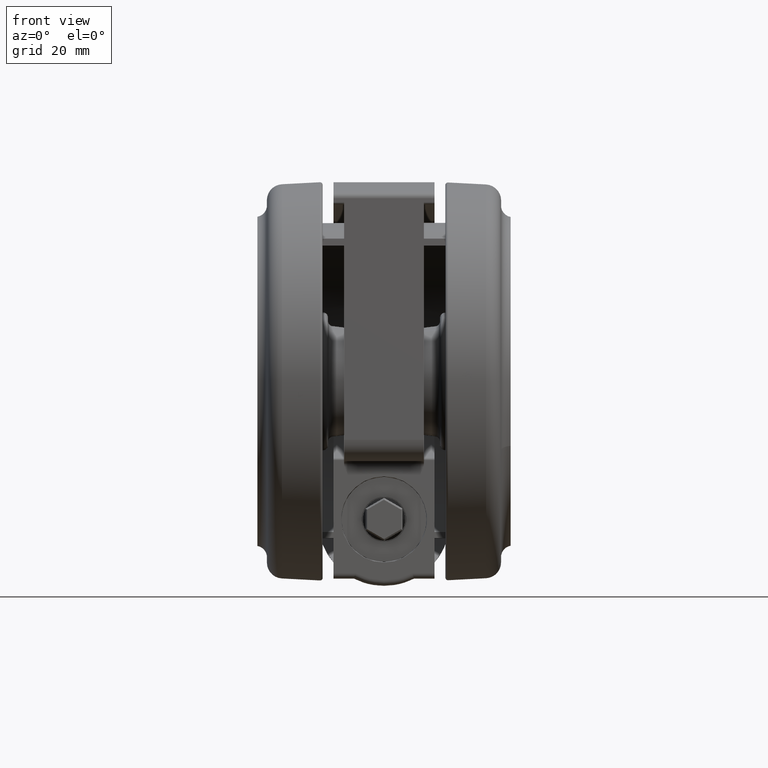
[diagram: clean part render]
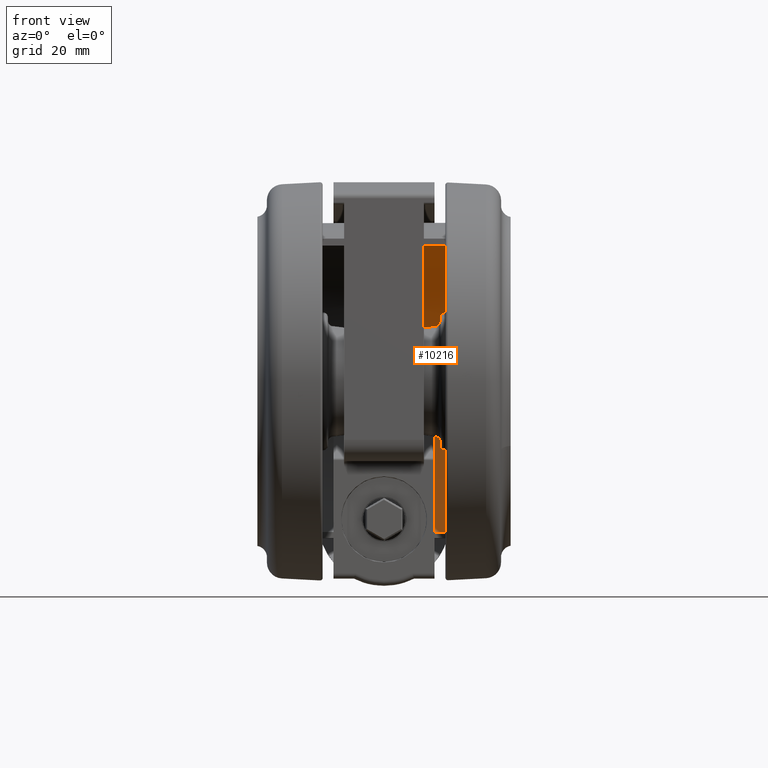
[diagram: same view with one face highlighted and labeled with its STEP entity id]
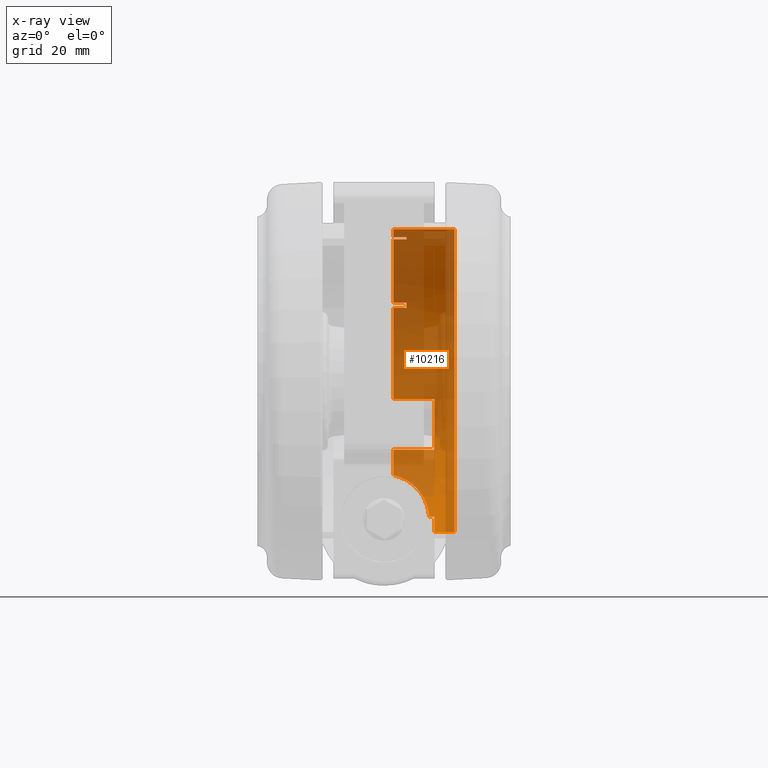
[diagram: x-ray of the same camera — body ghosted, the highlighted face saturated]
A machine part, front view. The second image highlights one B-rep face of the part: STEP entity #10216.
The next image is the same camera in x-ray: the body ghosted, the highlighted face saturated — about 80% of this face is hidden behind the body in this view.
In plain terms, the highlighted cylindrical surface (partial cylindrical patch) has radius 28.65 mm, axis along (-1, 0, 0).
Its self-contained STEP definition (entity closure, byte-faithful):
#36 = VERTEX_POINT ( 'NONE', #21709 ) ;
#113 = VERTEX_POINT ( 'NONE', #30694 ) ;
#183 = DIRECTION ( 'NONE',  ( 0.0000000000000000000, 0.0000000000000000000, -1.000000000000000000 ) ) ;
#187 = CARTESIAN_POINT ( 'NONE',  ( -2.081668171172168500E-014, -4.163336342344337000E-014, -19.59999999999989800 ) ) ;
#210 = EDGE_CURVE ( 'NONE', #56232, #12811, #10348, .T. ) ;
#605 = CIRCLE ( 'NONE', #42469, 28.64999999999999500 ) ;
#1041 = CARTESIAN_POINT ( 'NONE',  ( 18.47237538105821700, -21.89963122477810800, -22.09999999999989800 ) ) ;
#1673 = ORIENTED_EDGE ( 'NONE', *, *, #20931, .T. ) ;
#2098 = CIRCLE ( 'NONE', #22852, 28.64999999999999500 ) ;
#2159 = CIRCLE ( 'NONE', #28052, 28.64999999999999500 ) ;
#2346 = LINE ( 'NONE', #9666, #15682 ) ;
#2499 = CARTESIAN_POINT ( 'NONE',  ( -7.443500238701865600, -27.66616713960298000, -10.34999999999989800 ) ) ;
#3006 = FACE_OUTER_BOUND ( 'NONE', #46856, .T. ) ;
#3079 = CIRCLE ( 'NONE', #33637, 28.64999999999999500 ) ;
#3288 = CIRCLE ( 'NONE', #15584, 28.64999999999999500 ) ;
#3574 = CARTESIAN_POINT ( 'NONE',  ( 11.23323760836862000, 26.35596465382988300, -10.54999999999989900 ) ) ;
#3771 = VECTOR ( 'NONE', #19104, 1000.000000000000000 ) ;
#4064 = VERTEX_POINT ( 'NONE', #14465 ) ;
#4501 = DIRECTION ( 'NONE',  ( 0.0000000000000000000, 0.0000000000000000000, -1.000000000000000000 ) ) ;
#4591 = VECTOR ( 'NONE', #44282, 1000.000000000000000 ) ;
#4720 = DIRECTION ( 'NONE',  ( 0.3920850823165320000, 0.9199289582488630000, 0.0000000000000000000 ) ) ;
#4790 = VERTEX_POINT ( 'NONE', #36297 ) ;
#5040 = VERTEX_POINT ( 'NONE', #47260 ) ;
#5265 = ORIENTED_EDGE ( 'NONE', *, *, #17458, .T. ) ;
#6134 = LINE ( 'NONE', #56396, #50940 ) ;
#6379 = CARTESIAN_POINT ( 'NONE',  ( -2.081668171172168500E-014, -4.163336342344337000E-014, -19.59999999999989800 ) ) ;
#7897 = ORIENTED_EDGE ( 'NONE', *, *, #210, .T. ) ;
#8144 = CARTESIAN_POINT ( 'NONE',  ( 13.80464484434436700, -25.10486567822096400, -22.09999999999989800 ) ) ;
#8404 = ORIENTED_EDGE ( 'NONE', *, *, #20836, .T. ) ;
#8694 = VERTEX_POINT ( 'NONE', #3574 ) ;
#9076 = DIRECTION ( 'NONE',  ( 0.0000000000000000000, 0.0000000000000000000, -1.000000000000000000 ) ) ;
#9337 = ORIENTED_EDGE ( 'NONE', *, *, #24377, .T. ) ;
#9583 = ORIENTED_EDGE ( 'NONE', *, *, #51310, .F. ) ;
#9624 = LINE ( 'NONE', #17471, #32023 ) ;
#9666 = CARTESIAN_POINT ( 'NONE',  ( 11.23323760836862000, 26.35596465382988300, -10.34999999999989800 ) ) ;
#10216 = ADVANCED_FACE ( 'NONE', ( #3006 ), #25379, .F. ) ;
#10348 = B_SPLINE_CURVE_WITH_KNOTS ( 'NONE', 3,
 ( #55301, #53620, #49306, #55346, #55693, #55809, #56009, #56090, #56210, #56295, #56674, #56942, #57054, #57311, #57351, #57433, #57883, #44823, #41100, #42132 ),
 .UNSPECIFIED., .F., .F.,
 ( 4, 2, 2, 2, 2, 2, 2, 2, 2, 4 ),
 ( 0.01852732636095172000, 0.01946173926671352200, 0.02039615217247532600, 0.02226497798399892200, 0.02319939088976072400, 0.02413380379552252500, 0.02600262960704613100, 0.02787145541856973800, 0.02974028123009334800, 0.03347793285314056000 ),
 .UNSPECIFIED. ) ;
#10610 = EDGE_CURVE ( 'NONE', #22424, #49603, #35154, .T. ) ;
#10704 = VERTEX_POINT ( 'NONE', #1041 ) ;
#10909 = DIRECTION ( 'NONE',  ( 0.3920850823165320000, 0.9199289582488630000, 0.0000000000000000000 ) ) ;
#11101 = CARTESIAN_POINT ( 'NONE',  ( -2.081668171172168500E-014, -4.163336342344337000E-014, -14.34999999999990000 ) ) ;
#12629 = AXIS2_PLACEMENT_3D ( 'NONE', #11101, #42408, #15612 ) ;
#12811 = VERTEX_POINT ( 'NONE', #31116 ) ;
#13277 = VERTEX_POINT ( 'NONE', #35167 ) ;
#13973 = ORIENTED_EDGE ( 'NONE', *, *, #14413, .T. ) ;
#14080 = CARTESIAN_POINT ( 'NONE',  ( -2.081668171172168500E-014, -4.163336342344337000E-014, -22.09999999999989800 ) ) ;
#14234 = CARTESIAN_POINT ( 'NONE',  ( 28.36307073732953700, 4.044591246249662900, -22.09999999999989800 ) ) ;
#14413 = EDGE_CURVE ( 'NONE', #12811, #37983, #38607, .T. ) ;
#14465 = CARTESIAN_POINT ( 'NONE',  ( 24.84280370673677800, -14.27086556549901700, -14.34999999999990000 ) ) ;
#14630 = CARTESIAN_POINT ( 'NONE',  ( -2.081668171172168500E-014, -4.163336342344337000E-014, -10.34999999999989800 ) ) ;
#14862 = LINE ( 'NONE', #54552, #38680 ) ;
#15167 = VERTEX_POINT ( 'NONE', #57059 ) ;
#15584 = AXIS2_PLACEMENT_3D ( 'NONE', #6379, #37698, #10909 ) ;
#15612 = DIRECTION ( 'NONE',  ( 0.3920850823165320000, 0.9199289582488630000, 0.0000000000000000000 ) ) ;
#15682 = VECTOR ( 'NONE', #9076, 1000.000000000000000 ) ;
#16205 = VECTOR ( 'NONE', #18778, 1000.000000000000000 ) ;
#16509 = CARTESIAN_POINT ( 'NONE',  ( -2.081668171172168500E-014, -4.163336342344337000E-014, -22.09999999999989800 ) ) ;
#17458 = EDGE_CURVE ( 'NONE', #5040, #4064, #6134, .T. ) ;
#17471 = CARTESIAN_POINT ( 'NONE',  ( 19.12755958878579000, 21.32976709149552300, -19.59999999999989800 ) ) ;
#18445 = AXIS2_PLACEMENT_3D ( 'NONE', #27018, #183, #31527 ) ;
#18542 = DIRECTION ( 'NONE',  ( 0.3920850823165320000, 0.9199289582488630000, 0.0000000000000000000 ) ) ;
#18778 = DIRECTION ( 'NONE',  ( 0.0000000000000000000, 0.0000000000000000000, 1.000000000000000000 ) ) ;
#19004 = DIRECTION ( 'NONE',  ( -0.0000000000000000000, -0.0000000000000000000, 1.000000000000000000 ) ) ;
#19104 = DIRECTION ( 'NONE',  ( 0.0000000000000000000, 0.0000000000000000000, -1.000000000000000000 ) ) ;
#20581 = DIRECTION ( 'NONE',  ( -0.0000000000000000000, -0.0000000000000000000, 1.000000000000000000 ) ) ;
#20836 = EDGE_CURVE ( 'NONE', #10704, #56232, #49645, .T. ) ;
#20893 = DIRECTION ( 'NONE',  ( 0.0000000000000000000, 0.0000000000000000000, -1.000000000000000000 ) ) ;
#20931 = EDGE_CURVE ( 'NONE', #4790, #8694, #605, .T. ) ;
#21008 = DIRECTION ( 'NONE',  ( 0.3920850823165320000, 0.9199289582488630000, 0.0000000000000000000 ) ) ;
#21709 = CARTESIAN_POINT ( 'NONE',  ( 19.12755958878579000, 21.32976709149552300, -19.59999999999989800 ) ) ;
#21884 = VECTOR ( 'NONE', #40615, 1000.000000000000000 ) ;
#22376 = EDGE_CURVE ( 'NONE', #45972, #38021, #3288, .T. ) ;
#22424 = VERTEX_POINT ( 'NONE', #33952 ) ;
#22852 = AXIS2_PLACEMENT_3D ( 'NONE', #187, #31531, #4720 ) ;
#24377 = EDGE_CURVE ( 'NONE', #51769, #5040, #3079, .T. ) ;
#25379 = CYLINDRICAL_SURFACE ( 'NONE', #58164, 28.64999999999999500 ) ;
#25531 = EDGE_CURVE ( 'NONE', #15167, #45860, #2159, .T. ) ;
#26025 = EDGE_CURVE ( 'NONE', #36, #22424, #2098, .T. ) ;
#26065 = CIRCLE ( 'NONE', #33533, 28.64999999999999500 ) ;
#27018 = CARTESIAN_POINT ( 'NONE',  ( -2.081668171172168500E-014, -4.163336342344337000E-014, -22.09999999999989800 ) ) ;
#27082 = CARTESIAN_POINT ( 'NONE',  ( 20.00397893798255600, 20.51007866022817400, -19.59999999999989800 ) ) ;
#28052 = AXIS2_PLACEMENT_3D ( 'NONE', #14080, #45363, #18542 ) ;
#30424 = EDGE_CURVE ( 'NONE', #8694, #15167, #2346, .T. ) ;
#30694 = CARTESIAN_POINT ( 'NONE',  ( 18.47237538105822500, -21.89963122477808700, -14.34999999999990000 ) ) ;
#30935 = EDGE_CURVE ( 'NONE', #37983, #13277, #26065, .T. ) ;
#31073 = ORIENTED_EDGE ( 'NONE', *, *, #32801, .T. ) ;
#31116 = CARTESIAN_POINT ( 'NONE',  ( 1.948824868185828900, -28.58364185391958400, -15.36295898630607900 ) ) ;
#31320 = CARTESIAN_POINT ( 'NONE',  ( -2.081668171172168500E-014, -4.163336342344337000E-014, -14.34999999999990000 ) ) ;
#31527 = DIRECTION ( 'NONE',  ( 0.3920850823165320000, 0.9199289582488630000, 0.0000000000000000000 ) ) ;
#31531 = DIRECTION ( 'NONE',  ( 0.0000000000000000000, 0.0000000000000000000, -1.000000000000000000 ) ) ;
#32023 = VECTOR ( 'NONE', #44280, 1000.000000000000000 ) ;
#32801 = EDGE_CURVE ( 'NONE', #4064, #113, #47376, .T. ) ;
#33136 = CARTESIAN_POINT ( 'NONE',  ( 1.948824868185828900, -28.58364185391958400, -14.34999999999990000 ) ) ;
#33533 = AXIS2_PLACEMENT_3D ( 'NONE', #31320, #4501, #35813 ) ;
#33637 = AXIS2_PLACEMENT_3D ( 'NONE', #47714, #20893, #52185 ) ;
#33796 = DIRECTION ( 'NONE',  ( 0.0000000000000000000, 0.0000000000000000000, -1.000000000000000000 ) ) ;
#33820 = CARTESIAN_POINT ( 'NONE',  ( 28.50756134220161200, 2.853321979835167000, -22.09999999999989800 ) ) ;
#33952 = CARTESIAN_POINT ( 'NONE',  ( 20.00397893798255600, 20.51007866022817400, -19.59999999999989800 ) ) ;
#34232 = EDGE_CURVE ( 'NONE', #113, #10704, #51408, .T. ) ;
#34698 = ORIENTED_EDGE ( 'NONE', *, *, #26025, .T. ) ;
#35154 = LINE ( 'NONE', #27082, #21884 ) ;
#35167 = CARTESIAN_POINT ( 'NONE',  ( -7.443500238701865600, -27.66616713960298000, -14.34999999999990000 ) ) ;
#35393 = ORIENTED_EDGE ( 'NONE', *, *, #22376, .T. ) ;
#35813 = DIRECTION ( 'NONE',  ( 0.3920850823165320000, 0.9199289582488630000, 0.0000000000000000000 ) ) ;
#35908 = ORIENTED_EDGE ( 'NONE', *, *, #38135, .T. ) ;
#36297 = CARTESIAN_POINT ( 'NONE',  ( -7.443500238701865600, -27.66616713960298000, -10.54999999999989900 ) ) ;
#36772 = CARTESIAN_POINT ( 'NONE',  ( 19.12755958878579000, 21.32976709149552300, -22.09999999999989800 ) ) ;
#36899 = DIRECTION ( 'NONE',  ( 0.0000000000000000000, 0.0000000000000000000, -1.000000000000000000 ) ) ;
#36945 = ORIENTED_EDGE ( 'NONE', *, *, #30424, .T. ) ;
#37186 = ORIENTED_EDGE ( 'NONE', *, *, #51125, .T. ) ;
#37698 = DIRECTION ( 'NONE',  ( 0.0000000000000000000, 0.0000000000000000000, -1.000000000000000000 ) ) ;
#37983 = VERTEX_POINT ( 'NONE', #33136 ) ;
#38003 = ORIENTED_EDGE ( 'NONE', *, *, #48397, .F. ) ;
#38021 = VERTEX_POINT ( 'NONE', #46842 ) ;
#38135 = EDGE_CURVE ( 'NONE', #49603, #50171, #56711, .T. ) ;
#38607 = LINE ( 'NONE', #45584, #16205 ) ;
#38680 = VECTOR ( 'NONE', #54355, 1000.000000000000000 ) ;
#39590 = CARTESIAN_POINT ( 'NONE',  ( 28.36307073732953700, 4.044591246249662900, -19.59999999999989800 ) ) ;
#40338 = LINE ( 'NONE', #39590, #4591 ) ;
#40615 = DIRECTION ( 'NONE',  ( 0.0000000000000000000, 0.0000000000000000000, -1.000000000000000000 ) ) ;
#40672 = ORIENTED_EDGE ( 'NONE', *, *, #56801, .F. ) ;
#41100 = CARTESIAN_POINT ( 'NONE',  ( 3.216434662175125000, -28.49721656555684000, -15.39483026287122200 ) ) ;
#41427 = DIRECTION ( 'NONE',  ( 0.3920850823165320000, 0.9199289582488630000, 0.0000000000000000000 ) ) ;
#42132 = CARTESIAN_POINT ( 'NONE',  ( 1.948824868185828900, -28.58364185391958400, -15.36295898630607900 ) ) ;
#42149 = VECTOR ( 'NONE', #33796, 1000.000000000000000 ) ;
#42408 = DIRECTION ( 'NONE',  ( 0.0000000000000000000, 0.0000000000000000000, -1.000000000000000000 ) ) ;
#42469 = AXIS2_PLACEMENT_3D ( 'NONE', #45806, #19004, #50296 ) ;
#43628 = ORIENTED_EDGE ( 'NONE', *, *, #25531, .T. ) ;
#44280 = DIRECTION ( 'NONE',  ( 0.0000000000000000000, 0.0000000000000000000, -1.000000000000000000 ) ) ;
#44282 = DIRECTION ( 'NONE',  ( 0.0000000000000000000, 0.0000000000000000000, -1.000000000000000000 ) ) ;
#44412 = CARTESIAN_POINT ( 'NONE',  ( 20.00397893798255600, 20.51007866022817400, -22.09999999999989800 ) ) ;
#44823 = CARTESIAN_POINT ( 'NONE',  ( 4.465957769520523300, -28.32743831932997500, -15.48728369453020400 ) ) ;
#45363 = DIRECTION ( 'NONE',  ( 0.0000000000000000000, 0.0000000000000000000, -1.000000000000000000 ) ) ;
#45584 = CARTESIAN_POINT ( 'NONE',  ( 1.948824868185828900, -28.58364185391958400, -22.59999999999989800 ) ) ;
#45806 = CARTESIAN_POINT ( 'NONE',  ( -2.081668171172168500E-014, -4.163336342344337000E-014, -10.54999999999989900 ) ) ;
#45860 = VERTEX_POINT ( 'NONE', #36772 ) ;
#45912 = CARTESIAN_POINT ( 'NONE',  ( 18.47237538105821700, -21.89963122477810800, -10.34999999999989800 ) ) ;
#45972 = VERTEX_POINT ( 'NONE', #46564 ) ;
#46564 = CARTESIAN_POINT ( 'NONE',  ( 28.36307073732953700, 4.044591246249662900, -19.59999999999989800 ) ) ;
#46842 = CARTESIAN_POINT ( 'NONE',  ( 28.50756134220161200, 2.853321979835167000, -19.59999999999989800 ) ) ;
#46856 = EDGE_LOOP ( 'NONE', ( #1673, #36945, #43628, #40672, #34698, #57277, #35908, #38003, #35393, #37186, #9337, #5265, #31073, #57954, #8404, #7897, #13973, #55452, #9583 ) ) ;
#47260 = CARTESIAN_POINT ( 'NONE',  ( 24.84280370673677800, -14.27086556549901700, -22.09999999999989800 ) ) ;
#47376 = CIRCLE ( 'NONE', #12629, 28.64999999999999500 ) ;
#47714 = CARTESIAN_POINT ( 'NONE',  ( -2.081668171172168500E-014, -4.163336342344337000E-014, -22.09999999999989800 ) ) ;
#47821 = DIRECTION ( 'NONE',  ( 0.0000000000000000000, 0.0000000000000000000, -1.000000000000000000 ) ) ;
#48397 = EDGE_CURVE ( 'NONE', #45972, #50171, #40338, .T. ) ;
#49306 = CARTESIAN_POINT ( 'NONE',  ( 13.64269680173297100, -25.19353774818670300, -21.49435860080677300 ) ) ;
#49603 = VERTEX_POINT ( 'NONE', #44412 ) ;
#49645 = CIRCLE ( 'NONE', #18445, 28.64999999999999500 ) ;
#50171 = VERTEX_POINT ( 'NONE', #14234 ) ;
#50296 = DIRECTION ( 'NONE',  ( 0.3920850823165320000, 0.9199289582488630000, 0.0000000000000000000 ) ) ;
#50940 = VECTOR ( 'NONE', #20581, 1000.000000000000000 ) ;
#51125 = EDGE_CURVE ( 'NONE', #38021, #51769, #14862, .T. ) ;
#51310 = EDGE_CURVE ( 'NONE', #4790, #13277, #55431, .T. ) ;
#51408 = LINE ( 'NONE', #45912, #3771 ) ;
#51769 = VERTEX_POINT ( 'NONE', #33820 ) ;
#52185 = DIRECTION ( 'NONE',  ( 0.3920850823165320000, 0.9199289582488630000, 0.0000000000000000000 ) ) ;
#53620 = CARTESIAN_POINT ( 'NONE',  ( 13.73280445962834200, -25.14436921547137500, -21.79338790167826900 ) ) ;
#54355 = DIRECTION ( 'NONE',  ( 0.0000000000000000000, 0.0000000000000000000, -1.000000000000000000 ) ) ;
#54552 = CARTESIAN_POINT ( 'NONE',  ( 28.50756134220161200, 2.853321979835167000, -19.59999999999989800 ) ) ;
#55301 = CARTESIAN_POINT ( 'NONE',  ( 13.80464484434436700, -25.10486567822096400, -22.09999999999989800 ) ) ;
#55346 = CARTESIAN_POINT ( 'NONE',  ( 13.42665855199287600, -25.30933346458416400, -20.91091059408282900 ) ) ;
#55431 = LINE ( 'NONE', #2499, #42149 ) ;
#55452 = ORIENTED_EDGE ( 'NONE', *, *, #30935, .T. ) ;
#55693 = CARTESIAN_POINT ( 'NONE',  ( 13.30004513804144900, -25.37631548376981900, -20.62523474976789500 ) ) ;
#55809 = CARTESIAN_POINT ( 'NONE',  ( 12.86960294122567400, -25.59883147642119300, -19.79877038876988500 ) ) ;
#56009 = CARTESIAN_POINT ( 'NONE',  ( 12.52230457285943800, -25.77232369853672700, -19.29907336839419300 ) ) ;
#56020 = AXIS2_PLACEMENT_3D ( 'NONE', #16509, #47821, #21008 ) ;
#56090 = CARTESIAN_POINT ( 'NONE',  ( 11.91707126880361800, -26.05485525835175400, -18.61673531902728500 ) ) ;
#56210 = CARTESIAN_POINT ( 'NONE',  ( 11.70101419095895100, -26.15280274930019300, -18.40082402875913600 ) ) ;
#56232 = VERTEX_POINT ( 'NONE', #8144 ) ;
#56295 = CARTESIAN_POINT ( 'NONE',  ( 11.25092146103613000, -26.34956529088142200, -17.99903600053762900 ) ) ;
#56396 = CARTESIAN_POINT ( 'NONE',  ( 24.84280370673677800, -14.27086556549901700, -10.34999999999989800 ) ) ;
#56674 = CARTESIAN_POINT ( 'NONE',  ( 11.01577376251572600, -26.44891202992145900, -17.81183151040378500 ) ) ;
#56711 = CIRCLE ( 'NONE', #56020, 28.64999999999999500 ) ;
#56801 = EDGE_CURVE ( 'NONE', #36, #45860, #9624, .T. ) ;
#56942 = CARTESIAN_POINT ( 'NONE',  ( 10.28175452305006100, -26.74671756574161200, -17.28734769149098600 ) ) ;
#57054 = CARTESIAN_POINT ( 'NONE',  ( 9.750004306158656300, -26.94616342764934900, -16.98566904347114800 ) ) ;
#57059 = CARTESIAN_POINT ( 'NONE',  ( 11.23323760836862200, 26.35596465382988300, -22.09999999999989800 ) ) ;
#57277 = ORIENTED_EDGE ( 'NONE', *, *, #10610, .T. ) ;
#57311 = CARTESIAN_POINT ( 'NONE',  ( 8.652423046155517400, -27.31837994592755300, -16.48098124946282200 ) ) ;
#57351 = CARTESIAN_POINT ( 'NONE',  ( 8.083736723928913300, -27.49262107695497500, -16.27508664288875600 ) ) ;
#57433 = CARTESIAN_POINT ( 'NONE',  ( 6.911945153209151400, -27.81035827352559800, -15.93513661565433300 ) ) ;
#57883 = CARTESIAN_POINT ( 'NONE',  ( 6.305656135127526900, -27.95447568528474100, -15.80077351942729700 ) ) ;
#57954 = ORIENTED_EDGE ( 'NONE', *, *, #34232, .T. ) ;
#58164 = AXIS2_PLACEMENT_3D ( 'NONE', #14630, #36899, #41427 ) ;